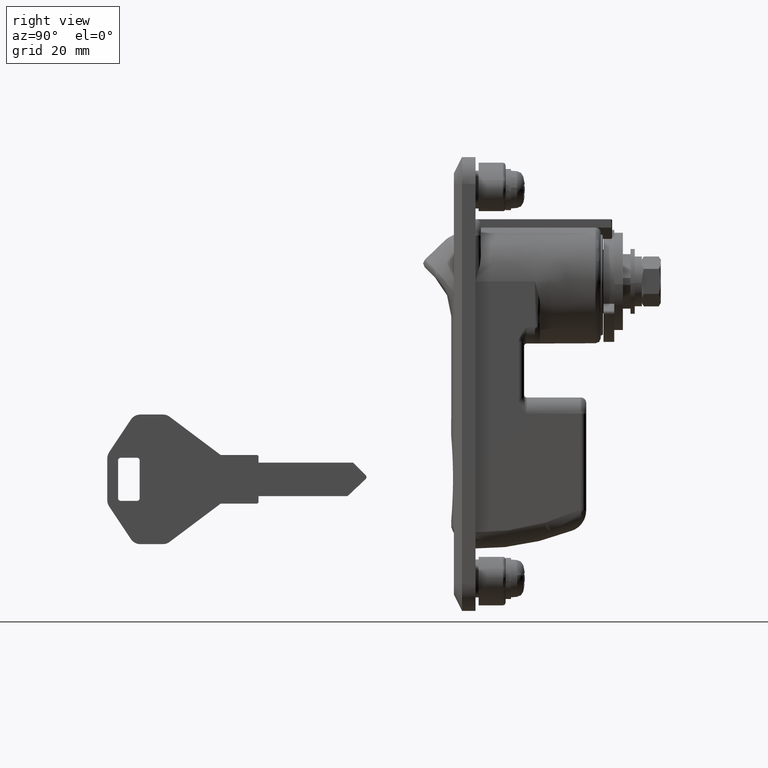
[diagram: clean part render]
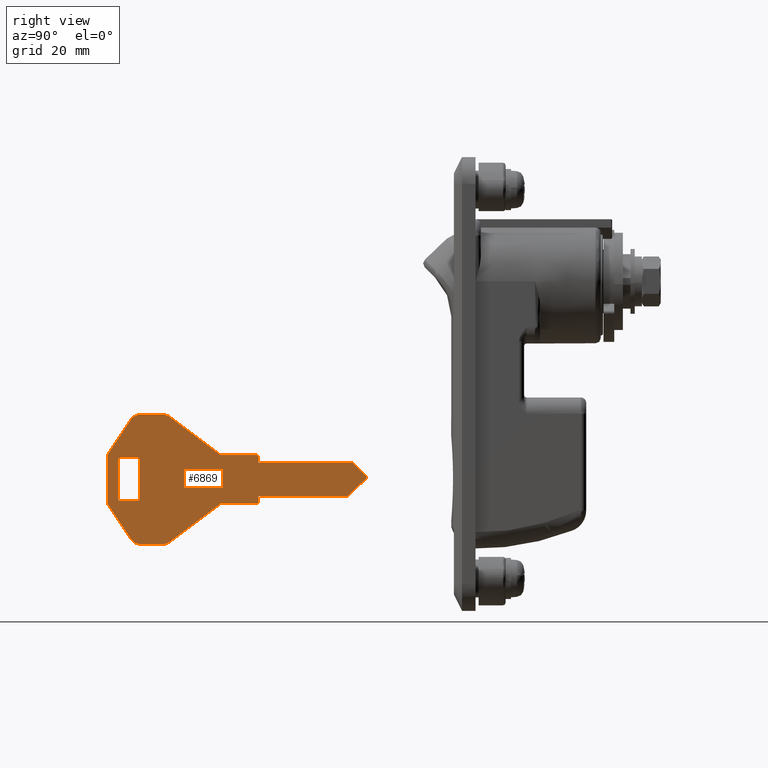
[diagram: same view with one face highlighted and labeled with its STEP entity id]
A machine part, right view. The second image highlights one B-rep face of the part: STEP entity #6869.
In plain terms, the highlighted face is a freeform B-spline surface patch.
Its self-contained STEP definition (entity closure, byte-faithful):
#6530=CARTESIAN_POINT('',(-69.577376275714812,-0.900000000000000,-23.451199510182139));
#6531=CARTESIAN_POINT('',(-16.782236324279399,-0.900000000000000,-23.451199510182139));
#6532=CARTESIAN_POINT('',(-69.577376275714812,-0.900000000000000,-49.848802421008351));
#6533=CARTESIAN_POINT('',(-16.782236324279410,-0.900000000000000,-49.848802421008351));
#6534=B_SPLINE_SURFACE_WITH_KNOTS('',1,1,((#6530,#6532),(#6531,#6533)),.UNSPECIFIED.,.F.,.F.,.U.,(2,2),(2,2),(0.0,52.795139951435409),(0.0,26.397602910826208),.UNSPECIFIED.);
#6535=CARTESIAN_POINT('',(-61.109409999999997,-0.900000000000012,-24.649999999999999));
#6536=VERTEX_POINT('',#6535);
#6537=CARTESIAN_POINT('',(-62.773510000000002,-0.900000000000012,-25.540600000000001));
#6538=VERTEX_POINT('',#6537);
#6539=CARTESIAN_POINT('',(-61.109409999999997,-0.900000000000012,-24.649999999999999));
#6540=CARTESIAN_POINT('',(-62.179777516975996,-0.900000000000012,-24.649999999999999));
#6541=CARTESIAN_POINT('',(-62.773510000000002,-0.900000000000012,-25.540600000000001));
#6549=(BOUNDED_CURVE()B_SPLINE_CURVE(2,(#6539,#6540,#6541),.UNSPECIFIED.,.F.,.U.)CURVE()GEOMETRIC_REPRESENTATION_ITEM()QUASI_UNIFORM_CURVE()RATIONAL_B_SPLINE_CURVE((1.0,0.881674598767944,1.0))REPRESENTATION_ITEM(''));
#6550=EDGE_CURVE('',#6536,#6538,#6549,.T.);
#6551=ORIENTED_EDGE('',*,*,#6550,.T.);
#6552=CARTESIAN_POINT('',(-66.843877999999805,-0.900000000000012,-31.646150999999850));
#6553=VERTEX_POINT('',#6552);
#6554=CARTESIAN_POINT('',(-62.773510000000002,-0.900000000000012,-25.540600000000001));
#6555=CARTESIAN_POINT('',(-66.843877999999805,-0.900000000000012,-31.646150999999850));
#6556=QUASI_UNIFORM_CURVE('',1,(#6554,#6555),.UNSPECIFIED.,.F.,.U.);
#6557=EDGE_CURVE('',#6538,#6553,#6556,.T.);
#6558=ORIENTED_EDGE('',*,*,#6557,.T.);
#6559=CARTESIAN_POINT('',(-67.179776999999802,-0.900000000000012,-32.755550999999897));
#6560=VERTEX_POINT('',#6559);
#6561=CARTESIAN_POINT('',(-66.843877999999805,-0.900000000000012,-31.646150999999850));
#6562=CARTESIAN_POINT('',(-67.179776999999802,-0.900000000000012,-32.150000027311492));
#6563=CARTESIAN_POINT('',(-67.179776999999802,-0.900000000000012,-32.755550999999897));
#6571=(BOUNDED_CURVE()B_SPLINE_CURVE(2,(#6561,#6562,#6563),.UNSPECIFIED.,.F.,.U.)CURVE()GEOMETRIC_REPRESENTATION_ITEM()QUASI_UNIFORM_CURVE()RATIONAL_B_SPLINE_CURVE((1.0,0.957092066674869,1.0))REPRESENTATION_ITEM(''));
#6572=EDGE_CURVE('',#6553,#6560,#6571,.T.);
#6573=ORIENTED_EDGE('',*,*,#6572,.T.);
#6574=CARTESIAN_POINT('',(-67.179776999999802,-0.900000000000012,-40.544448999999901));
#6575=VERTEX_POINT('',#6574);
#6576=CARTESIAN_POINT('',(-67.179776999999802,-0.900000000000012,-32.755550999999897));
#6577=CARTESIAN_POINT('',(-67.179776999999802,-0.900000000000012,-40.544448999999901));
#6578=QUASI_UNIFORM_CURVE('',1,(#6576,#6577),.UNSPECIFIED.,.F.,.U.);
#6579=EDGE_CURVE('',#6560,#6575,#6578,.T.);
#6580=ORIENTED_EDGE('',*,*,#6579,.T.);
#6581=CARTESIAN_POINT('',(-66.843877579497203,-0.900000000000012,-41.653849406217802));
#6582=VERTEX_POINT('',#6581);
#6583=CARTESIAN_POINT('',(-67.179776999999802,-0.900000000000012,-40.544448999999901));
#6584=CARTESIAN_POINT('',(-67.179776999999802,-0.900000000000012,-41.150000284495519));
#6585=CARTESIAN_POINT('',(-66.843877579497203,-0.900000000000012,-41.653849406217802));
#6593=(BOUNDED_CURVE()B_SPLINE_CURVE(2,(#6583,#6584,#6585),.UNSPECIFIED.,.F.,.U.)CURVE()GEOMETRIC_REPRESENTATION_ITEM()QUASI_UNIFORM_CURVE()RATIONAL_B_SPLINE_CURVE((1.0,0.957092025290332,1.0))REPRESENTATION_ITEM(''));
#6594=EDGE_CURVE('',#6575,#6582,#6593,.T.);
#6595=ORIENTED_EDGE('',*,*,#6594,.T.);
#6596=CARTESIAN_POINT('',(-62.773510000000002,-0.900000000000012,-47.759399999999999));
#6597=VERTEX_POINT('',#6596);
#6598=CARTESIAN_POINT('',(-66.843877579497203,-0.900000000000012,-41.653849406217802));
#6599=CARTESIAN_POINT('',(-62.773510000000002,-0.900000000000012,-47.759399999999999));
#6600=QUASI_UNIFORM_CURVE('',1,(#6598,#6599),.UNSPECIFIED.,.F.,.U.);
#6601=EDGE_CURVE('',#6582,#6597,#6600,.T.);
#6602=ORIENTED_EDGE('',*,*,#6601,.T.);
#6603=CARTESIAN_POINT('',(-61.109409149690499,-0.900000000000012,-48.649999999999999));
#6604=VERTEX_POINT('',#6603);
#6605=CARTESIAN_POINT('',(-62.773509999999838,-0.900000000000012,-47.759399999999893));
#6606=CARTESIAN_POINT('',(-62.179776970047733,-0.900000000000012,-48.649999999999984));
#6607=CARTESIAN_POINT('',(-61.109409149690499,-0.900000000000012,-48.649999999999999));
#6615=(BOUNDED_CURVE()B_SPLINE_CURVE(2,(#6605,#6606,#6607),.UNSPECIFIED.,.F.,.U.)CURVE()GEOMETRIC_REPRESENTATION_ITEM()QUASI_UNIFORM_CURVE()RATIONAL_B_SPLINE_CURVE((1.0,0.881674543128003,1.0))REPRESENTATION_ITEM(''));
#6616=EDGE_CURVE('',#6597,#6604,#6615,.T.);
#6617=ORIENTED_EDGE('',*,*,#6616,.T.);
#6618=CARTESIAN_POINT('',(-56.846443999999799,-0.900000000000012,-48.649999999999999));
#6619=VERTEX_POINT('',#6618);
#6620=CARTESIAN_POINT('',(-61.109409149690499,-0.900000000000012,-48.649999999999999));
#6621=CARTESIAN_POINT('',(-56.846443999999799,-0.900000000000012,-48.649999999999999));
#6622=QUASI_UNIFORM_CURVE('',1,(#6620,#6621),.UNSPECIFIED.,.F.,.U.);
#6623=EDGE_CURVE('',#6604,#6619,#6622,.T.);
#6624=ORIENTED_EDGE('',*,*,#6623,.T.);
#6625=CARTESIAN_POINT('',(-55.646443990109901,-0.900000000000012,-48.249999992582502));
#6626=VERTEX_POINT('',#6625);
#6627=CARTESIAN_POINT('',(-56.846443999999799,-0.900000000000012,-48.649999999999999));
#6628=CARTESIAN_POINT('',(-56.179777326465128,-0.900000000000012,-48.649999999999999));
#6629=CARTESIAN_POINT('',(-55.646443990109873,-0.900000000000012,-48.249999992582552));
#6637=(BOUNDED_CURVE()B_SPLINE_CURVE(2,(#6627,#6628,#6629),.UNSPECIFIED.,.F.,.U.)CURVE()GEOMETRIC_REPRESENTATION_ITEM()QUASI_UNIFORM_CURVE()RATIONAL_B_SPLINE_CURVE((1.0,0.948683297073179,1.0))REPRESENTATION_ITEM(''));
#6638=EDGE_CURVE('',#6619,#6626,#6637,.T.);
#6639=ORIENTED_EDGE('',*,*,#6638,.T.);
#6640=CARTESIAN_POINT('',(-46.179776999999802,-0.900000000000012,-41.149999999999999));
#6641=VERTEX_POINT('',#6640);
#6642=CARTESIAN_POINT('',(-55.646443990109901,-0.900000000000012,-48.249999992582502));
#6643=CARTESIAN_POINT('',(-46.179776999999802,-0.900000000000012,-41.149999999999999));
#6644=QUASI_UNIFORM_CURVE('',1,(#6642,#6643),.UNSPECIFIED.,.F.,.U.);
#6645=EDGE_CURVE('',#6626,#6641,#6644,.T.);
#6646=ORIENTED_EDGE('',*,*,#6645,.T.);
#6647=CARTESIAN_POINT('',(-39.479776999999800,-0.900000000000012,-41.149999999999999));
#6648=VERTEX_POINT('',#6647);
#6649=CARTESIAN_POINT('',(-46.179776999999802,-0.900000000000012,-41.149999999999999));
#6650=CARTESIAN_POINT('',(-39.479776999999800,-0.900000000000012,-41.149999999999999));
#6651=QUASI_UNIFORM_CURVE('',1,(#6649,#6650),.UNSPECIFIED.,.F.,.U.);
#6652=EDGE_CURVE('',#6641,#6648,#6651,.T.);
#6653=ORIENTED_EDGE('',*,*,#6652,.T.);
#6654=CARTESIAN_POINT('',(-39.179776999999802,-0.900000000000012,-40.849999999999987));
#6655=VERTEX_POINT('',#6654);
#6656=CARTESIAN_POINT('',(-39.479776999999800,-0.900000000000012,-41.149999999999999));
#6657=CARTESIAN_POINT('',(-39.179776999999795,-0.900000000000012,-41.149999999999999));
#6658=CARTESIAN_POINT('',(-39.179776999999802,-0.900000000000012,-40.849999999999987));
#6666=(BOUNDED_CURVE()B_SPLINE_CURVE(2,(#6656,#6657,#6658),.UNSPECIFIED.,.F.,.U.)CURVE()GEOMETRIC_REPRESENTATION_ITEM()QUASI_UNIFORM_CURVE()RATIONAL_B_SPLINE_CURVE((1.0,0.707106781186547,1.0))REPRESENTATION_ITEM(''));
#6667=EDGE_CURVE('',#6648,#6655,#6666,.T.);
#6668=ORIENTED_EDGE('',*,*,#6667,.T.);
#6669=CARTESIAN_POINT('',(-39.179776999999802,-0.900000000000012,-39.750000000000000));
#6670=VERTEX_POINT('',#6669);
#6671=CARTESIAN_POINT('',(-39.179776999999802,-0.900000000000012,-40.849999999999987));
#6672=CARTESIAN_POINT('',(-39.179776999999802,-0.900000000000012,-39.750000000000000));
#6673=QUASI_UNIFORM_CURVE('',1,(#6671,#6672),.UNSPECIFIED.,.F.,.U.);
#6674=EDGE_CURVE('',#6655,#6670,#6673,.T.);
#6675=ORIENTED_EDGE('',*,*,#6674,.T.);
#6676=CARTESIAN_POINT('',(-22.679776999999799,-0.900000000000012,-39.750000000000000));
#6677=VERTEX_POINT('',#6676);
#6678=CARTESIAN_POINT('',(-39.179776999999802,-0.900000000000012,-39.750000000000000));
#6679=CARTESIAN_POINT('',(-22.679776999999799,-0.900000000000012,-39.750000000000000));
#6680=QUASI_UNIFORM_CURVE('',1,(#6678,#6679),.UNSPECIFIED.,.F.,.U.);
#6681=EDGE_CURVE('',#6670,#6677,#6680,.T.);
#6682=ORIENTED_EDGE('',*,*,#6681,.T.);
#6683=CARTESIAN_POINT('',(-19.337682999999799,-0.900000000000012,-36.614652999999848));
#6684=VERTEX_POINT('',#6683);
#6685=CARTESIAN_POINT('',(-22.679776999999799,-0.900000000000012,-39.750000000000000));
#6686=CARTESIAN_POINT('',(-19.337682999999799,-0.900000000000012,-36.614652999999848));
#6687=QUASI_UNIFORM_CURVE('',1,(#6685,#6686),.UNSPECIFIED.,.F.,.U.);
#6688=EDGE_CURVE('',#6677,#6684,#6687,.T.);
#6689=ORIENTED_EDGE('',*,*,#6688,.T.);
#6690=CARTESIAN_POINT('',(-19.326758677415150,-0.900000000000012,-35.895912349947650));
#6691=VERTEX_POINT('',#6690);
#6692=CARTESIAN_POINT('',(-19.337682999999799,-0.900000000000012,-36.614652999999848));
#6693=CARTESIAN_POINT('',(-19.183056916477739,-0.900000000000012,-36.469592591779254));
#6694=CARTESIAN_POINT('',(-19.179834745181861,-0.900000000000012,-36.257598805665992));
#6695=CARTESIAN_POINT('',(-19.176612573885976,-0.900000000000012,-36.045605019552738));
#6696=CARTESIAN_POINT('',(-19.326758677415199,-0.900000000000012,-35.895912349947707));
#6704=(BOUNDED_CURVE()B_SPLINE_CURVE(2,(#6692,#6693,#6694,#6695,#6696),.UNSPECIFIED.,.F.,.U.)B_SPLINE_CURVE_WITH_KNOTS((3,2,3),(0.0,0.500000000000000,1.0),.UNSPECIFIED.)CURVE()GEOMETRIC_REPRESENTATION_ITEM()RATIONAL_B_SPLINE_CURVE((1.0,0.920649914944350,1.0,0.920649914944350,1.0))REPRESENTATION_ITEM(''));
#6705=EDGE_CURVE('',#6684,#6691,#6704,.T.);
#6706=ORIENTED_EDGE('',*,*,#6705,.T.);
#6707=CARTESIAN_POINT('',(-21.679776999999799,-0.900000000000012,-33.549999999999997));
#6708=VERTEX_POINT('',#6707);
#6709=CARTESIAN_POINT('',(-19.326758677415150,-0.900000000000012,-35.895912349947650));
#6710=CARTESIAN_POINT('',(-21.679776999999799,-0.900000000000012,-33.549999999999997));
#6711=QUASI_UNIFORM_CURVE('',1,(#6709,#6710),.UNSPECIFIED.,.F.,.U.);
#6712=EDGE_CURVE('',#6691,#6708,#6711,.T.);
#6713=ORIENTED_EDGE('',*,*,#6712,.T.);
#6714=CARTESIAN_POINT('',(-39.179776999999802,-0.900000000000012,-33.549999999999997));
#6715=VERTEX_POINT('',#6714);
#6716=CARTESIAN_POINT('',(-21.679776999999799,-0.900000000000012,-33.549999999999997));
#6717=CARTESIAN_POINT('',(-39.179776999999802,-0.900000000000012,-33.549999999999997));
#6718=QUASI_UNIFORM_CURVE('',1,(#6716,#6717),.UNSPECIFIED.,.F.,.U.);
#6719=EDGE_CURVE('',#6708,#6715,#6718,.T.);
#6720=ORIENTED_EDGE('',*,*,#6719,.T.);
#6721=CARTESIAN_POINT('',(-39.179776999999802,-0.900000000000012,-32.450000000000003));
#6722=VERTEX_POINT('',#6721);
#6723=CARTESIAN_POINT('',(-39.179776999999802,-0.900000000000012,-33.549999999999997));
#6724=CARTESIAN_POINT('',(-39.179776999999802,-0.900000000000012,-32.450000000000003));
#6725=QUASI_UNIFORM_CURVE('',1,(#6723,#6724),.UNSPECIFIED.,.F.,.U.);
#6726=EDGE_CURVE('',#6715,#6722,#6725,.T.);
#6727=ORIENTED_EDGE('',*,*,#6726,.T.);
#6728=CARTESIAN_POINT('',(-39.479776999999800,-0.900000000000012,-32.149999999999999));
#6729=VERTEX_POINT('',#6728);
#6730=CARTESIAN_POINT('',(-39.179776999999802,-0.900000000000012,-32.450000000000003));
#6731=CARTESIAN_POINT('',(-39.179776999999795,-0.900000000000012,-32.149999999999999));
#6732=CARTESIAN_POINT('',(-39.479776999999800,-0.900000000000012,-32.149999999999999));
#6740=(BOUNDED_CURVE()B_SPLINE_CURVE(2,(#6730,#6731,#6732),.UNSPECIFIED.,.F.,.U.)CURVE()GEOMETRIC_REPRESENTATION_ITEM()QUASI_UNIFORM_CURVE()RATIONAL_B_SPLINE_CURVE((1.0,0.707106781186547,1.0))REPRESENTATION_ITEM(''));
#6741=EDGE_CURVE('',#6722,#6729,#6740,.T.);
#6742=ORIENTED_EDGE('',*,*,#6741,.T.);
#6743=CARTESIAN_POINT('',(-46.179776999999802,-0.900000000000012,-32.149999999999999));
#6744=VERTEX_POINT('',#6743);
#6745=CARTESIAN_POINT('',(-39.479776999999800,-0.900000000000012,-32.149999999999999));
#6746=CARTESIAN_POINT('',(-46.179776999999802,-0.900000000000012,-32.149999999999999));
#6747=QUASI_UNIFORM_CURVE('',1,(#6745,#6746),.UNSPECIFIED.,.F.,.U.);
#6748=EDGE_CURVE('',#6729,#6744,#6747,.T.);
#6749=ORIENTED_EDGE('',*,*,#6748,.T.);
#6750=CARTESIAN_POINT('',(-55.646443999999804,-0.900000000000012,-25.050000000000001));
#6751=VERTEX_POINT('',#6750);
#6752=CARTESIAN_POINT('',(-46.179776999999802,-0.900000000000012,-32.149999999999999));
#6753=CARTESIAN_POINT('',(-55.646443999999804,-0.900000000000012,-25.050000000000001));
#6754=QUASI_UNIFORM_CURVE('',1,(#6752,#6753),.UNSPECIFIED.,.F.,.U.);
#6755=EDGE_CURVE('',#6744,#6751,#6754,.T.);
#6756=ORIENTED_EDGE('',*,*,#6755,.T.);
#6757=CARTESIAN_POINT('',(-56.846443999999799,-0.900000000000012,-24.649999999999999));
#6758=VERTEX_POINT('',#6757);
#6759=CARTESIAN_POINT('',(-55.646443999999804,-0.900000000000012,-25.050000000000001));
#6760=CARTESIAN_POINT('',(-56.179777333333135,-0.900000000000012,-24.649999999999995));
#6761=CARTESIAN_POINT('',(-56.846443999999799,-0.900000000000012,-24.649999999999999));
#6769=(BOUNDED_CURVE()B_SPLINE_CURVE(2,(#6759,#6760,#6761),.UNSPECIFIED.,.F.,.U.)CURVE()GEOMETRIC_REPRESENTATION_ITEM()QUASI_UNIFORM_CURVE()RATIONAL_B_SPLINE_CURVE((1.0,0.948683298050514,1.0))REPRESENTATION_ITEM(''));
#6770=EDGE_CURVE('',#6751,#6758,#6769,.T.);
#6771=ORIENTED_EDGE('',*,*,#6770,.T.);
#6772=CARTESIAN_POINT('',(-56.846443999999799,-0.900000000000012,-24.649999999999999));
#6773=CARTESIAN_POINT('',(-61.109409999999997,-0.900000000000012,-24.649999999999999));
#6774=QUASI_UNIFORM_CURVE('',1,(#6772,#6773),.UNSPECIFIED.,.F.,.U.);
#6775=EDGE_CURVE('',#6758,#6536,#6774,.T.);
#6776=ORIENTED_EDGE('',*,*,#6775,.T.);
#6777=EDGE_LOOP('',(#6551,#6558,#6573,#6580,#6595,#6602,#6617,#6624,#6639,#6646,#6653,#6668,#6675,#6682,#6689,#6706,#6713,#6720,#6727,#6742,#6749,#6756,#6771,#6776));
#6778=FACE_OUTER_BOUND('',#6777,.T.);
#6779=CARTESIAN_POINT('',(-61.679776999999802,-0.900000000000012,-32.649999999999999));
#6780=VERTEX_POINT('',#6779);
#6781=CARTESIAN_POINT('',(-64.679776999999802,-0.900000000000012,-32.649999999999999));
#6782=VERTEX_POINT('',#6781);
#6783=CARTESIAN_POINT('',(-61.679776999999802,-0.900000000000012,-32.649999999999999));
#6784=CARTESIAN_POINT('',(-64.679776999999802,-0.900000000000012,-32.649999999999999));
#6785=QUASI_UNIFORM_CURVE('',1,(#6783,#6784),.UNSPECIFIED.,.F.,.U.);
#6786=EDGE_CURVE('',#6780,#6782,#6785,.T.);
#6787=ORIENTED_EDGE('',*,*,#6786,.F.);
#6788=CARTESIAN_POINT('',(-61.179776999999802,-0.900000000000012,-33.149999999999999));
#6789=VERTEX_POINT('',#6788);
#6790=CARTESIAN_POINT('',(-61.179776999999802,-0.900000000000012,-33.149999999999999));
#6791=CARTESIAN_POINT('',(-61.179776999999795,-0.900000000000012,-32.649999999999999));
#6792=CARTESIAN_POINT('',(-61.679776999999802,-0.900000000000012,-32.649999999999999));
#6800=(BOUNDED_CURVE()B_SPLINE_CURVE(2,(#6790,#6791,#6792),.UNSPECIFIED.,.F.,.U.)CURVE()GEOMETRIC_REPRESENTATION_ITEM()QUASI_UNIFORM_CURVE()RATIONAL_B_SPLINE_CURVE((1.0,0.707106781186548,1.0))REPRESENTATION_ITEM(''));
#6801=EDGE_CURVE('',#6789,#6780,#6800,.T.);
#6802=ORIENTED_EDGE('',*,*,#6801,.F.);
#6803=CARTESIAN_POINT('',(-61.179776999999802,-0.900000000000012,-40.149999999999999));
#6804=VERTEX_POINT('',#6803);
#6805=CARTESIAN_POINT('',(-61.179776999999802,-0.900000000000012,-40.149999999999999));
#6806=CARTESIAN_POINT('',(-61.179776999999802,-0.900000000000012,-33.149999999999999));
#6807=QUASI_UNIFORM_CURVE('',1,(#6805,#6806),.UNSPECIFIED.,.F.,.U.);
#6808=EDGE_CURVE('',#6804,#6789,#6807,.T.);
#6809=ORIENTED_EDGE('',*,*,#6808,.F.);
#6810=CARTESIAN_POINT('',(-61.679776999999802,-0.900000000000012,-40.649999999999999));
#6811=VERTEX_POINT('',#6810);
#6812=CARTESIAN_POINT('',(-61.679776999999802,-0.900000000000012,-40.649999999999999));
#6813=CARTESIAN_POINT('',(-61.179776999999795,-0.900000000000012,-40.649999999999999));
#6814=CARTESIAN_POINT('',(-61.179776999999802,-0.900000000000012,-40.149999999999999));
#6822=(BOUNDED_CURVE()B_SPLINE_CURVE(2,(#6812,#6813,#6814),.UNSPECIFIED.,.F.,.U.)CURVE()GEOMETRIC_REPRESENTATION_ITEM()QUASI_UNIFORM_CURVE()RATIONAL_B_SPLINE_CURVE((1.0,0.707106781186548,1.0))REPRESENTATION_ITEM(''));
#6823=EDGE_CURVE('',#6811,#6804,#6822,.T.);
#6824=ORIENTED_EDGE('',*,*,#6823,.F.);
#6825=CARTESIAN_POINT('',(-64.679776999999802,-0.900000000000012,-40.649999999999999));
#6826=VERTEX_POINT('',#6825);
#6827=CARTESIAN_POINT('',(-64.679776999999802,-0.900000000000012,-40.649999999999999));
#6828=CARTESIAN_POINT('',(-61.679776999999802,-0.900000000000012,-40.649999999999999));
#6829=QUASI_UNIFORM_CURVE('',1,(#6827,#6828),.UNSPECIFIED.,.F.,.U.);
#6830=EDGE_CURVE('',#6826,#6811,#6829,.T.);
#6831=ORIENTED_EDGE('',*,*,#6830,.F.);
#6832=CARTESIAN_POINT('',(-65.179776999999802,-0.900000000000012,-40.149999999999999));
#6833=VERTEX_POINT('',#6832);
#6834=CARTESIAN_POINT('',(-65.179776999999802,-0.900000000000012,-40.149999999999999));
#6835=CARTESIAN_POINT('',(-65.179776999999802,-0.900000000000012,-40.649999999999999));
#6836=CARTESIAN_POINT('',(-64.679776999999802,-0.900000000000012,-40.649999999999999));
#6844=(BOUNDED_CURVE()B_SPLINE_CURVE(2,(#6834,#6835,#6836),.UNSPECIFIED.,.F.,.U.)CURVE()GEOMETRIC_REPRESENTATION_ITEM()QUASI_UNIFORM_CURVE()RATIONAL_B_SPLINE_CURVE((1.0,0.707106781186548,1.0))REPRESENTATION_ITEM(''));
#6845=EDGE_CURVE('',#6833,#6826,#6844,.T.);
#6846=ORIENTED_EDGE('',*,*,#6845,.F.);
#6847=CARTESIAN_POINT('',(-65.179776999999802,-0.900000000000012,-33.149999999999999));
#6848=VERTEX_POINT('',#6847);
#6849=CARTESIAN_POINT('',(-65.179776999999802,-0.900000000000012,-33.149999999999999));
#6850=CARTESIAN_POINT('',(-65.179776999999802,-0.900000000000012,-40.149999999999999));
#6851=QUASI_UNIFORM_CURVE('',1,(#6849,#6850),.UNSPECIFIED.,.F.,.U.);
#6852=EDGE_CURVE('',#6848,#6833,#6851,.T.);
#6853=ORIENTED_EDGE('',*,*,#6852,.F.);
#6854=CARTESIAN_POINT('',(-64.679776999999802,-0.900000000000012,-32.649999999999999));
#6855=CARTESIAN_POINT('',(-65.179776999999802,-0.900000000000012,-32.649999999999999));
#6856=CARTESIAN_POINT('',(-65.179776999999802,-0.900000000000012,-33.149999999999999));
#6864=(BOUNDED_CURVE()B_SPLINE_CURVE(2,(#6854,#6855,#6856),.UNSPECIFIED.,.F.,.U.)CURVE()GEOMETRIC_REPRESENTATION_ITEM()QUASI_UNIFORM_CURVE()RATIONAL_B_SPLINE_CURVE((1.0,0.707106781186548,1.0))REPRESENTATION_ITEM(''));
#6865=EDGE_CURVE('',#6782,#6848,#6864,.T.);
#6866=ORIENTED_EDGE('',*,*,#6865,.F.);
#6867=EDGE_LOOP('',(#6787,#6802,#6809,#6824,#6831,#6846,#6853,#6866));
#6868=FACE_BOUND('',#6867,.T.);
#6869=ADVANCED_FACE('',(#6778,#6868),#6534,.F.);